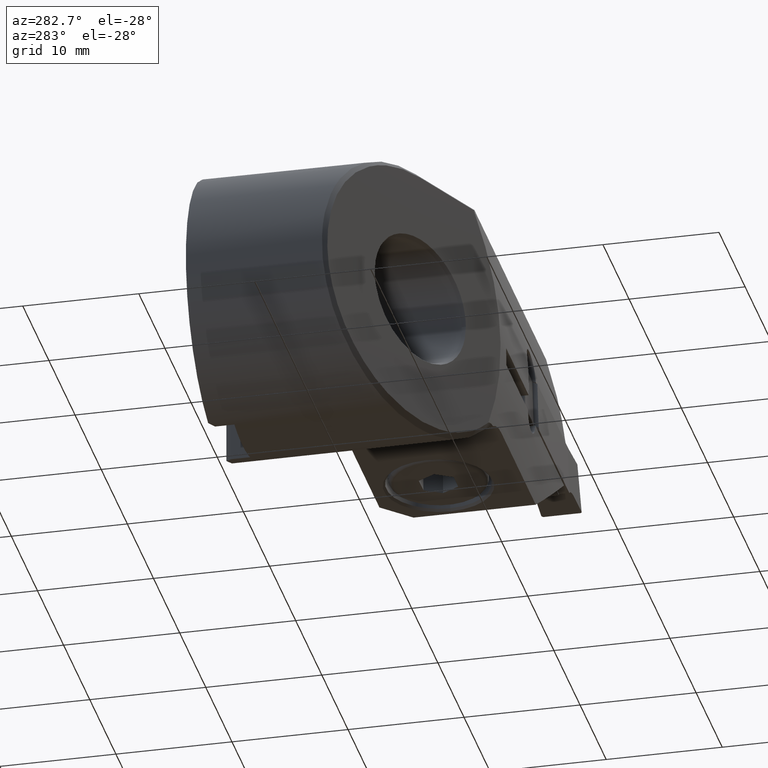
[diagram: clean part render]
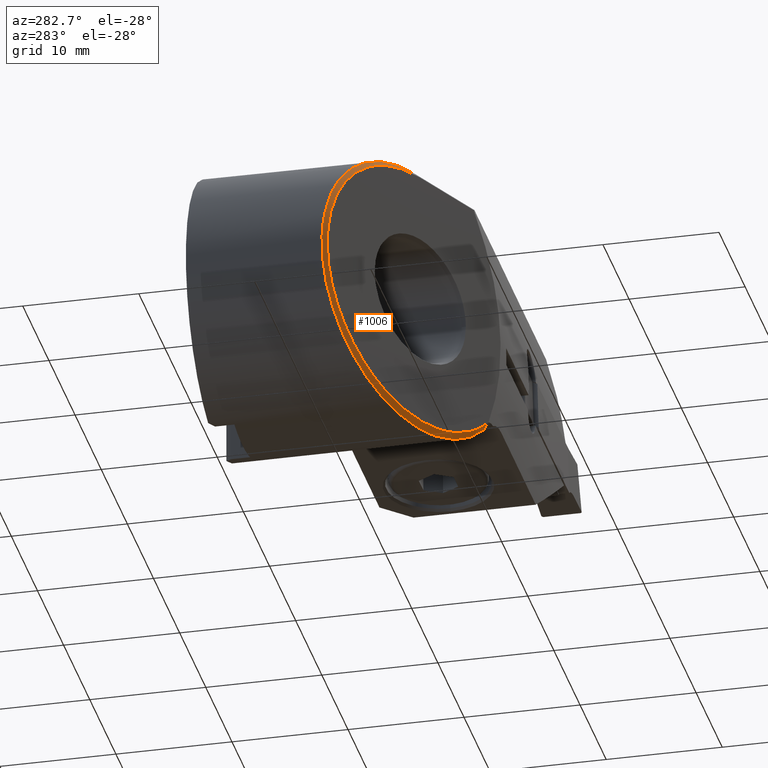
[diagram: same view with one face highlighted and labeled with its STEP entity id]
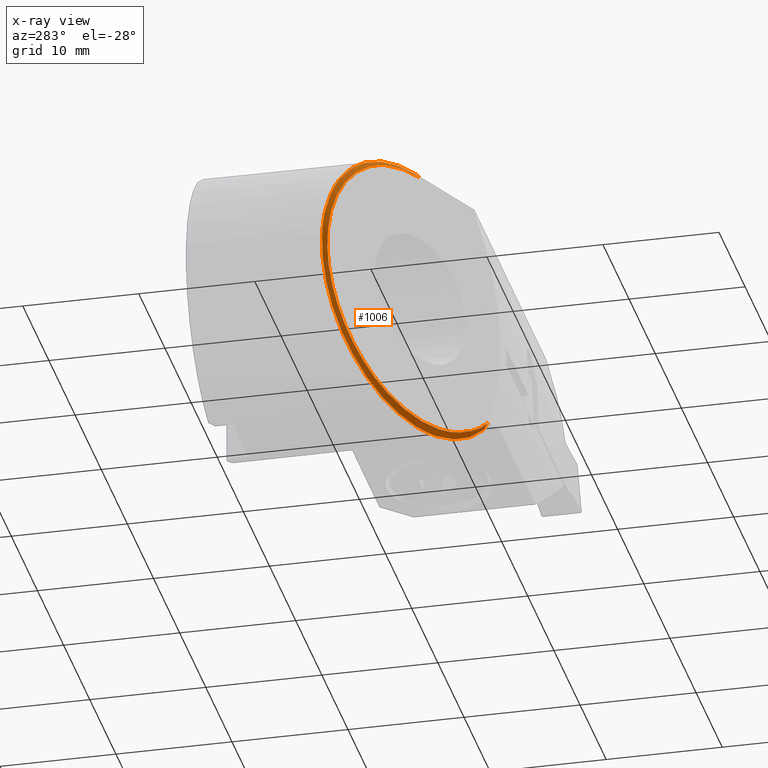
[diagram: x-ray of the same camera — body ghosted, the highlighted face saturated]
A machine part, auxiliary view. The second image highlights one B-rep face of the part: STEP entity #1006.
The next image is the same camera in x-ray: the body ghosted, the highlighted face saturated — about 0% of this face is hidden behind the body in this view.
In plain terms, the highlighted face is a freeform B-spline surface patch.
Its self-contained STEP definition (entity closure, byte-faithful):
#876=EDGE_CURVE('NONE',#1536,#1782,#2349,.F.);
#936=VERTEX_POINT('NONE',#2415);
#972=VERTEX_POINT('NONE',#2454);
#1006=ADVANCED_FACE('NONE',(#2494),#2495,.T.);
#1124=EDGE_CURVE('NONE',#1536,#2140,#2624,.T.);
#1372=VERTEX_POINT('',#2894);
#1526=EDGE_CURVE('NONE',#936,#972,#3067,.T.);
#1536=VERTEX_POINT('NONE',#3077);
#1646=EDGE_CURVE('NONE',#972,#1372,#3193,.T.);
#1782=VERTEX_POINT('NONE',#3346);
#2002=EDGE_CURVE('NONE',#1372,#1782,#3593,.T.);
#2058=EDGE_CURVE('NONE',#2140,#936,#3656,.T.);
#2140=VERTEX_POINT('NONE',#3742);
#2349=B_SPLINE_CURVE_WITH_KNOTS('',1,(#4051,#4052),.UNSPECIFIED.,.F.,.F.,(2,2),(3.44169137633799E-015,0.999999999999994),.UNSPECIFIED.);
#2415=CARTESIAN_POINT('',(8.70585055638072,-21.0214306022468,-8.25882352941177));
#2454=CARTESIAN_POINT('',(0.000127132625236236,-17.1135887251396,-11.9999999993266));
#2494=FACE_OUTER_BOUND('',#4258,.T.);
#2495=B_SPLINE_SURFACE_WITH_KNOTS('',1,3,((#4259,#4260,#4261,#4262,#4263,#4264,#4265,#4266,#4267,#4268,#4269,#4270,#4271,#4272,#4273,#4274,#4275,#4276,#4277,#4278,#4279,#4280,#4281,#4282),(#4283,#4284,#4285,#4286,#4287,#4288,#4289,#4290,#4291,#4292,#4293,#4294,#4295,#4296,#4297,#4298,#4299,#4300,#4301,#4302,#4303,#4304,#4305,#4306),(#4307,#4308,#4309,#4310,#4311,#4312,#4313,#4314,#4315,#4316,#4317,#4318,#4319,#4320,#4321,#4322,#4323,#4324,#4325,#4326,#4327,#4328,#4329,#4330)),.UNSPECIFIED.,.F.,.F.,.F.,(2,1,2),(4,3,2,2,2,2,2,2,2,3,4),(-0.142235075234763,0.0,1.0),(3.86111309779303,3.90064644963641,4.39481334767867,4.88898024572093,5.38314714376319,5.87731404180544,6.3714809398477,6.86564783788996,7.35981473593222,7.85398163397448,7.89351498581786),.UNSPECIFIED.);
#2624=B_SPLINE_CURVE_WITH_KNOTS('',3,(#4599,#4600,#4601,#4602,#4603,#4604,#4605,#4606,#4607,#4608,#4609,#4610,#4611,#4612,#4613,#4614,#4615,#4616,#4617,#4618,#4619,#4620,#4621),.UNSPECIFIED.,.F.,.F.,(4,1,2,2,2,2,2,2,2,2,2,4),(0.0,0.0624999999999999,0.0937499999999999,0.125,0.25,0.375,0.5,0.625,0.75,0.8125,0.875,1.0),.UNSPECIFIED.);
#2894=CARTESIAN_POINT('',(-2.80649743675581E-013,-17.1135317976237,-12.0));
#3067=B_SPLINE_CURVE_WITH_KNOTS('',3,(#5524,#5525,#5526,#5527,#5528,#5529,#5530,#5531,#5532,#5533,#5534,#5535,#5536,#5537,#5538,#5539,#5540,#5541,#5542,#5543,#5544,#5545,#5546,#5547,#5548,#5549),.UNSPECIFIED.,.F.,.F.,(4,2,2,2,2,2,2,2,2,2,2,2,4),(-12.268442268074,-12.1450642113249,-11.9696358276416,-11.8871228370995,-11.7908012352085,-11.5960268058741,-11.284820873291,-10.585884270786,-9.06837693916302,-8.06810803531895,-5.38891703570178,-2.64679597727817,-0.0),.UNSPECIFIED.);
#3077=CARTESIAN_POINT('',(-0.189090218719429,-17.5186953501022,11.5525744251075));
#3193=B_SPLINE_CURVE_WITH_KNOTS('',3,(#5755,#5756,#5757,#5758,#5759,#5760,#5761,#5762,#5763,#5764,#5765,#5766,#5767,#5768,#5769,#5770,#5771,#5772,#5773,#5774,#5775,#5776,#5777,#5778,#5779,#5780,#5781,#5782,#5783,#5784,#5785,#5786,#5787,#5788,#5789,#5790,#5791,#5792,#5793,#5794),.UNSPECIFIED.,.F.,.F.,(4,2,2,2,2,2,2,2,2,2,2,2,2,2,2,2,2,2,2,4),(-51.1107395337743,-46.6343419377027,-42.4507812478867,-38.2631842885573,-32.2791663495651,-30.0434360509297,-24.546884098793,-22.4867814572427,-18.7622350562353,-15.9694199910246,-10.3311747624531,-8.94288867927371,-2.85543433935506,-0.54868736192626,-0.490720992010847,-0.428060672758063,-0.325750287491835,-0.251366457562362,-0.139472428335542,-0.0),.UNSPECIFIED.);
#3346=CARTESIAN_POINT('',(0.0,-17.1131900674578,12.0));
#3593=B_SPLINE_CURVE_WITH_KNOTS('',3,(#6506,#6507,#6508,#6509,#6510,#6511,#6512,#6513,#6514,#6515,#6516,#6517,#6518,#6519,#6520,#6521,#6522,#6523,#6524,#6525,#6526,#6527,#6528,#6529,#6530,#6531,#6532,#6533,#6534,#6535,#6536,#6537,#6538,#6539,#6540,#6541,#6542,#6543,#6544,#6545),.UNSPECIFIED.,.F.,.F.,(4,2,2,2,2,2,2,2,2,2,2,2,2,2,2,2,2,2,2,4),(-51.1107395337743,-46.6343419377027,-42.4507812478867,-38.2631842885573,-32.2791663495651,-30.0434360509297,-24.546884098793,-22.4867814572427,-18.7622350562353,-15.9694199910246,-10.3311747624531,-8.94288867927371,-2.85543433935506,-0.54868736192626,-0.490720992010847,-0.428060672758063,-0.325750287491835,-0.251366457562362,-0.139472428335542,-0.0),.UNSPECIFIED.);
#3656=B_SPLINE_CURVE_WITH_KNOTS('',1,(#6643,#6644),.UNSPECIFIED.,.F.,.F.,(2,2),(-1.0,4.44089209850063E-015),.UNSPECIFIED.);
#3742=CARTESIAN_POINT('',(8.19215865515161,-21.4269358848912,-7.95088945727988));
#4051=CARTESIAN_POINT('',(-3.54993812123894E-014,-17.1131900674578,12.0));
#4052=CARTESIAN_POINT('',(-0.189090218719425,-17.5186953501022,11.5525744251075));
#4258=EDGE_LOOP('',(#7193,#7194,#7195,#7196,#7197,#7198));
#4259=CARTESIAN_POINT('',(9.10685525308988,-21.1101959659783,-7.95620391331127));
#4260=CARTESIAN_POINT('',(8.99754202292643,-21.0613818199395,-8.07167679398377));
#4261=CARTESIAN_POINT('',(8.88822879276299,-21.0125676739006,-8.18714967465628));
#4262=CARTESIAN_POINT('',(8.77891556259954,-20.9637535278618,-8.30262255532879));
#4263=CARTESIAN_POINT('',(7.41250018555646,-20.3535767023762,-9.74603356373513));
#4264=CARTESIAN_POINT('',(5.6821436225498,-19.5808808645833,-10.8397459536301));
#4265=CARTESIAN_POINT('',(1.90573589770293,-17.8945148326488,-12.0810547647239));
#4266=CARTESIAN_POINT('',(-0.135952516691801,-16.9834702918709,-12.2281678174664));
#4267=CARTESIAN_POINT('',(-4.04906550832436,-15.23538066351,-11.5268586390328));
#4268=CARTESIAN_POINT('',(-5.91464046511957,-14.4023026523037,-10.6855079415913));
#4269=CARTESIAN_POINT('',(-9.0286050004859,-13.0117525847239,-8.21461147990394));
#4270=CARTESIAN_POINT('',(-10.271938873543,-12.4565381686471,-6.5890775521054));
#4271=CARTESIAN_POINT('',(-11.8414195845907,-11.7556819180609,-2.93684018000548));
#4272=CARTESIAN_POINT('',(-12.1650179751662,-11.6111781002464,-0.91606738452394));
#4273=CARTESIAN_POINT('',(-11.8144822414607,-11.7677108682422,3.04363379133416));
#4274=CARTESIAN_POINT('',(-11.1409173245869,-12.0684932728147,4.97613196197457));
#4275=CARTESIAN_POINT('',(-8.95423852123089,-13.0449611558505,8.29585217066774));
#4276=CARTESIAN_POINT('',(-7.44467511646866,-13.7190611562211,9.67768374246512));
#4277=CARTESIAN_POINT('',(-3.94506387748865,-15.281822899218,11.5631080220768));
#4278=CARTESIAN_POINT('',(-1.96069673830542,-16.1679479106177,12.0657286710035));
#4279=CARTESIAN_POINT('',(0.0268952614856757,-17.0555129930727,12.0636396103068));
#4280=CARTESIAN_POINT('',(0.185902621468963,-17.1265181996691,12.0634724854511));
#4281=CARTESIAN_POINT('',(0.34490998145225,-17.1975234062656,12.0633053605953));
#4282=CARTESIAN_POINT('',(0.503917341435537,-17.268528612862,12.0631382357396));
#4283=CARTESIAN_POINT('',(9.0320602586767,-21.1678730403634,-7.9142323580493));
#4284=CARTESIAN_POINT('',(8.92332369124471,-21.1190588943245,-8.02909608183679));
#4285=CARTESIAN_POINT('',(8.81458712381272,-21.0702447482857,-8.14395980562428));
#4286=CARTESIAN_POINT('',(8.70585055638073,-21.0214306022468,-8.25882352941177));
#4287=CARTESIAN_POINT('',(7.34664346348084,-20.4112537767612,-9.69462007675538));
#4288=CARTESIAN_POINT('',(5.62541509104344,-19.638557938345,-10.7825627796192));
#4289=CARTESIAN_POINT('',(1.86892914401918,-17.9521919076572,-12.017323283394));
#4290=CARTESIAN_POINT('',(-0.161958687554474,-17.0410770037417,-12.163306232561));
#4291=CARTESIAN_POINT('',(-4.05445875368367,-15.2930577386111,-11.4660507226611));
#4292=CARTESIAN_POINT('',(-5.91019219969781,-14.4599797264735,-10.6291384223008));
#4293=CARTESIAN_POINT('',(-9.00772956158946,-13.0694296593241,-8.1712767413096));
#4294=CARTESIAN_POINT('',(-10.2445044452459,-12.5142152432929,-6.55431803295328));
#4295=CARTESIAN_POINT('',(-11.8057056377869,-11.8133589921852,-2.92134739455724));
#4296=CARTESIAN_POINT('',(-12.1275969415805,-11.6688551745358,-0.91123483436241));
#4297=CARTESIAN_POINT('',(-11.7789103971153,-11.825387942723,3.02757763856139));
#4298=CARTESIAN_POINT('',(-11.1088987541292,-12.1261703470315,4.94988125193202));
#4299=CARTESIAN_POINT('',(-8.9337553897243,-13.1026382304038,8.25208886126978));
#4300=CARTESIAN_POINT('',(-7.43215542077753,-13.7767382310492,9.62663082346276));
#4301=CARTESIAN_POINT('',(-3.95100576764366,-15.3394999731599,11.5021088776747));
#4302=CARTESIAN_POINT('',(-1.97710680756046,-16.2256249850028,12.0020780402242));
#4303=CARTESIAN_POINT('',(-3.4847220452592E-014,-17.1131900674578,12.0));
#4304=CARTESIAN_POINT('',(0.158168544604799,-17.1841952740542,11.9998337567821));
#4305=CARTESIAN_POINT('',(0.316337089209632,-17.2552004806506,11.9996675135641));
#4306=CARTESIAN_POINT('',(0.474505633814466,-17.326205687247,11.9995012703462));
#4307=CARTESIAN_POINT('',(8.50620547714881,-21.5733783230077,-7.6191465278299));
#4308=CARTESIAN_POINT('',(8.40152320314974,-21.5245641769689,-7.72972750431322));
#4309=CARTESIAN_POINT('',(8.29684092915068,-21.4757500309301,-7.84030848079655));
#4310=CARTESIAN_POINT('',(8.19215865515161,-21.4269358848912,-7.95088945727988));
#4311=CARTESIAN_POINT('',(6.88363023016328,-20.8167590594056,-9.3331516633215));
#4312=CARTESIAN_POINT('',(5.22657864783325,-20.0440632166073,-10.3805299201677));
#4313=CARTESIAN_POINT('',(1.61015504330599,-18.3576971946837,-11.5692517987433));
#4314=CARTESIAN_POINT('',(-0.344798052737422,-17.4460875946649,-11.7072894251849));
#4315=CARTESIAN_POINT('',(-4.09237658337802,-15.6985630262899,-11.03853369656));
#4316=CARTESIAN_POINT('',(-5.87891815977185,-14.8654850076051,-10.2328260556257));
#4317=CARTESIAN_POINT('',(-8.86096239560047,-13.4749349434813,-7.86660689441834));
#4318=CARTESIAN_POINT('',(-10.0516235524578,-12.919720527771,-6.30993724927703));
#4319=CARTESIAN_POINT('',(-11.5546146411054,-12.2188642729959,-2.81242359061743));
#4320=CARTESIAN_POINT('',(-11.8645040756051,-12.0743604565074,-0.877259036525249));
#4321=CARTESIAN_POINT('',(-11.5288184680555,-12.2308932260402,2.91469301607104));
#4322=CARTESIAN_POINT('',(-10.8837885244277,-12.5316756284931,4.76532262601488));
#4323=CARTESIAN_POINT('',(-8.78974638580747,-13.508143514231,7.9444058982192));
#4324=CARTESIAN_POINT('',(-7.34413426516269,-14.1822435168093,9.2676974245237));
#4325=CARTESIAN_POINT('',(-3.99278090746204,-15.7450052526886,11.0732474009858));
#4326=CARTESIAN_POINT('',(-2.0924796804468,-16.6311302676472,11.5545749846366));
#4327=CARTESIAN_POINT('',(-0.189090218719427,-17.5186953501022,11.5525744251075));
#4328=CARTESIAN_POINT('',(-0.0368190617812366,-17.5897005566986,11.5524143803452));
#4329=CARTESIAN_POINT('',(0.115452095156953,-17.660705763295,11.5522543355829));
#4330=CARTESIAN_POINT('',(0.267723252095143,-17.7317109698914,11.5520942908206));
#4599=CARTESIAN_POINT('',(-0.189090218719429,-17.5186953501022,11.5525744251075));
#4600=CARTESIAN_POINT('',(-1.1586526806973,-17.0665809490223,11.5534416155385));
#4601=CARTESIAN_POINT('',(-2.57074544812981,-16.4081112775432,11.3813292568176));
#4602=CARTESIAN_POINT('',(-3.91946182726091,-15.7791945012753,10.9490971815457));
#4603=CARTESIAN_POINT('',(-4.8045224381702,-15.3664839604769,10.6031380832421));
#4604=CARTESIAN_POINT('',(-5.241008751759,-15.1629470497706,10.4007188600971));
#4605=CARTESIAN_POINT('',(-7.37825292452578,-14.1663337246623,9.24948662338536));
#4606=CARTESIAN_POINT('',(-8.7683471018784,-13.5181221642061,7.97661913822175));
#4607=CARTESIAN_POINT('',(-10.9051878083568,-12.5216969785179,4.73310938601233));
#4608=CARTESIAN_POINT('',(-11.5252580063479,-12.232553496601,2.95320189547539));
#4609=CARTESIAN_POINT('',(-11.8680645373127,-12.0727001859465,-0.915767915929602));
#4610=CARTESIAN_POINT('',(-11.5697448683731,-12.2118089321513,-2.77683296048714));
#4611=CARTESIAN_POINT('',(-10.0364933251901,-12.9267758686156,-6.34552787940731));
#4612=CARTESIAN_POINT('',(-8.89116324103333,-13.4608520579732,-7.84245029683428));
#4613=CARTESIAN_POINT('',(-5.848717314339,-14.8795678931132,-10.2569826532098));
#4614=CARTESIAN_POINT('',(-4.13042188142378,-15.6808222124544,-11.0315912844491));
#4615=CARTESIAN_POINT('',(-1.26267003637469,-17.0180768594889,-11.5435716990841));
#4616=CARTESIAN_POINT('',(-0.314965215230897,-17.4599988752586,-11.5957333764051));
#4617=CARTESIAN_POINT('',(1.56401950597822,-18.3361838403147,-11.4630598092662));
#4618=CARTESIAN_POINT('',(2.49397926830176,-18.7698311992622,-11.2786583817253));
#4619=CARTESIAN_POINT('',(5.26714200010533,-20.0629782184122,-10.3673558149159));
#4620=CARTESIAN_POINT('',(6.85840593663267,-20.8049967781608,-9.35935534752407));
#4621=CARTESIAN_POINT('',(8.19215865515161,-21.4269358848912,-7.95088945727988));
#5524=CARTESIAN_POINT('',(9.02414568741277,-21.1739762471233,-7.90979105996799));
#5525=CARTESIAN_POINT('',(8.99522420958316,-21.1591409961211,-7.94278708065311));
#5526=CARTESIAN_POINT('',(8.96608498487477,-21.1444738884431,-7.9756664362572));
#5527=CARTESIAN_POINT('',(8.89498573531427,-21.1093595808628,-8.05500719681287));
#5528=CARTESIAN_POINT('',(8.85280626244376,-21.0890859035674,-8.10134317150356));
#5529=CARTESIAN_POINT('',(8.79014442520514,-21.0597795128424,-8.16910231363108));
#5530=CARTESIAN_POINT('',(8.77000334923568,-21.0504806566406,-8.19072131788351));
#5531=CARTESIAN_POINT('',(8.72614219462332,-21.0304914783191,-8.23745312720532));
#5532=CARTESIAN_POINT('',(8.70618485368804,-21.0215813176877,-8.2585279533422));
#5533=CARTESIAN_POINT('',(8.64229185312093,-20.9929973841768,-8.32554080596833));
#5534=CARTESIAN_POINT('',(8.59922663335402,-20.9737166740082,-8.37001360331018));
#5535=CARTESIAN_POINT('',(8.48655232987625,-20.9232389177495,-8.48458590350986));
#5536=CARTESIAN_POINT('',(8.41646623241914,-20.8918089788306,-8.55411114808545));
#5537=CARTESIAN_POINT('',(8.18650227085104,-20.7886050805935,-8.77668591913516));
#5538=CARTESIAN_POINT('',(8.02355886019886,-20.7153615413054,-8.92586300542567));
#5539=CARTESIAN_POINT('',(7.49554878525077,-20.4778823611763,-9.38325655829904));
#5540=CARTESIAN_POINT('',(7.11740203903689,-20.3076354878527,-9.67299060520581));
#5541=CARTESIAN_POINT('',(6.46682791415478,-20.015159701162,-10.113235378837));
#5542=CARTESIAN_POINT('',(6.20238234524853,-19.8963715124051,-10.2774853559511));
#5543=CARTESIAN_POINT('',(5.21038298804387,-19.4511818111578,-10.8416991629286));
#5544=CARTESIAN_POINT('',(4.45198512185151,-19.1118507129152,-11.1737860403404));
#5545=CARTESIAN_POINT('',(2.87076603987393,-18.4018582403343,-11.6817972401203));
#5546=CARTESIAN_POINT('',(2.04879754563891,-18.0319894420704,-11.8532256793245));
#5547=CARTESIAN_POINT('',(0.417120361226203,-17.3000998613203,-12.0197735168981));
#5548=CARTESIAN_POINT('',(-0.39066045791995,-16.9388347928758,-12.0206767994962));
#5549=CARTESIAN_POINT('',(-1.19245521778434,-16.5795218461153,-11.9406051167258));
#5755=CARTESIAN_POINT('',(1.67317886542641,-17.8635887251396,-11.8827805030763));
#5756=CARTESIAN_POINT('',(0.607915217070025,-17.3853778767153,-12.0327770987448));
#5757=CARTESIAN_POINT('',(-0.472663882683707,-16.9025015625153,-12.0388702117902));
#5758=CARTESIAN_POINT('',(-2.53709409329583,-15.9764095765037,-11.7717642143697));
#5759=CARTESIAN_POINT('',(-3.51968832033502,-15.5323815446608,-11.5171405151978));
#5760=CARTESIAN_POINT('',(-5.40726804077724,-14.6834903511753,-10.7608632348712));
#5761=CARTESIAN_POINT('',(-6.30827346877731,-14.2805640388079,-10.2606549354582));
#5762=CARTESIAN_POINT('',(-8.33247774146225,-13.3732808598049,-8.76160309021244));
#5763=CARTESIAN_POINT('',(-9.37198452897184,-12.9031275952333,-7.65002585504532));
#5764=CARTESIAN_POINT('',(-10.4874064357802,-12.4042510613646,-5.86031718225905));
#5765=CARTESIAN_POINT('',(-10.757106244321,-12.2840043341429,-5.34987186785839));
#5766=CARTESIAN_POINT('',(-11.5626708495389,-11.9226683362412,-3.51259323058209));
#5767=CARTESIAN_POINT('',(-11.9023215892045,-11.7672887334161,-2.10636342080083));
#5768=CARTESIAN_POINT('',(-12.0117356565117,-11.7200312976639,-0.11613471855283));
#5769=CARTESIAN_POINT('',(-12.0046766299929,-11.7239472916562,0.427521612545422));
#5770=CARTESIAN_POINT('',(-11.8815272753052,-11.7794633192266,1.94773702908078));
#5771=CARTESIAN_POINT('',(-11.6830733050261,-11.8665423116109,2.90760589723612));
#5772=CARTESIAN_POINT('',(-11.1391184659749,-12.1105422826564,4.52252949042826));
#5773=CARTESIAN_POINT('',(-10.8451071541274,-12.2433629518405,5.18681136631367));
#5774=CARTESIAN_POINT('',(-9.79046987814773,-12.7189044665585,7.08967327615137));
#5775=CARTESIAN_POINT('',(-8.82144983387299,-13.1503415578295,8.29220759467422));
#5776=CARTESIAN_POINT('',(-7.26949305856102,-13.8482408144783,9.55566899606804));
#5777=CARTESIAN_POINT('',(-6.95205037667513,-13.9911733939032,9.78890685485077));
#5778=CARTESIAN_POINT('',(-5.1918339065926,-14.7834931392159,10.9544556959218));
#5779=CARTESIAN_POINT('',(-3.58841057141916,-15.5004139935645,11.5740043372434));
#5780=CARTESIAN_POINT('',(-1.29705423676694,-16.5309265509957,11.9467412586937));
#5781=CARTESIAN_POINT('',(-0.660697915005886,-16.8173113168902,11.9987157233126));
#5782=CARTESIAN_POINT('',(-0.00774691154891705,-17.1097214766804,12.0000081738703));
#5783=CARTESIAN_POINT('',(0.00900119487439318,-17.1172100379169,12.0000095585553));
#5784=CARTESIAN_POINT('',(0.045665708506055,-17.1337164460536,11.9999282239731));
#5785=CARTESIAN_POINT('',(0.0646925049478916,-17.142332099899,11.9998406737465));
#5786=CARTESIAN_POINT('',(0.114735921870466,-17.1651237499734,11.9994916109906));
#5787=CARTESIAN_POINT('',(0.145720190972321,-17.1793680829956,11.9991550804972));
#5788=CARTESIAN_POINT('',(0.199141684765679,-17.2041573376391,11.9983685748938));
#5789=CARTESIAN_POINT('',(0.221602942629688,-17.214650551753,11.9979746454178));
#5790=CARTESIAN_POINT('',(0.277781910499528,-17.2410723244239,11.9968319342571));
#5791=CARTESIAN_POINT('',(0.311463188186968,-17.2570729530747,11.9960044038384));
#5792=CARTESIAN_POINT('',(0.38698061393145,-17.2933077899173,11.9938318806906));
#5793=CARTESIAN_POINT('',(0.428778642029736,-17.313612492168,11.9924096780405));
#5794=CARTESIAN_POINT('',(0.47047197118031,-17.3341157978326,11.9907737917256));
#6506=CARTESIAN_POINT('',(1.67317886542641,-17.8635887251396,-11.8827805030763));
#6507=CARTESIAN_POINT('',(0.607915217070025,-17.3853778767153,-12.0327770987448));
#6508=CARTESIAN_POINT('',(-0.472663882683707,-16.9025015625153,-12.0388702117902));
#6509=CARTESIAN_POINT('',(-2.53709409329583,-15.9764095765037,-11.7717642143697));
#6510=CARTESIAN_POINT('',(-3.51968832033502,-15.5323815446608,-11.5171405151978));
#6511=CARTESIAN_POINT('',(-5.40726804077724,-14.6834903511753,-10.7608632348712));
#6512=CARTESIAN_POINT('',(-6.30827346877731,-14.2805640388079,-10.2606549354582));
#6513=CARTESIAN_POINT('',(-8.33247774146225,-13.3732808598049,-8.76160309021244));
#6514=CARTESIAN_POINT('',(-9.37198452897184,-12.9031275952333,-7.65002585504532));
#6515=CARTESIAN_POINT('',(-10.4874064357802,-12.4042510613646,-5.86031718225905));
#6516=CARTESIAN_POINT('',(-10.757106244321,-12.2840043341429,-5.34987186785839));
#6517=CARTESIAN_POINT('',(-11.5626708495389,-11.9226683362412,-3.51259323058209));
#6518=CARTESIAN_POINT('',(-11.9023215892045,-11.7672887334161,-2.10636342080083));
#6519=CARTESIAN_POINT('',(-12.0117356565117,-11.7200312976639,-0.11613471855283));
#6520=CARTESIAN_POINT('',(-12.0046766299929,-11.7239472916562,0.427521612545422));
#6521=CARTESIAN_POINT('',(-11.8815272753052,-11.7794633192266,1.94773702908078));
#6522=CARTESIAN_POINT('',(-11.6830733050261,-11.8665423116109,2.90760589723612));
#6523=CARTESIAN_POINT('',(-11.1391184659749,-12.1105422826564,4.52252949042826));
#6524=CARTESIAN_POINT('',(-10.8451071541274,-12.2433629518405,5.18681136631367));
#6525=CARTESIAN_POINT('',(-9.79046987814773,-12.7189044665585,7.08967327615137));
#6526=CARTESIAN_POINT('',(-8.82144983387299,-13.1503415578295,8.29220759467422));
#6527=CARTESIAN_POINT('',(-7.26949305856102,-13.8482408144783,9.55566899606804));
#6528=CARTESIAN_POINT('',(-6.95205037667513,-13.9911733939032,9.78890685485077));
#6529=CARTESIAN_POINT('',(-5.1918339065926,-14.7834931392159,10.9544556959218));
#6530=CARTESIAN_POINT('',(-3.58841057141916,-15.5004139935645,11.5740043372434));
#6531=CARTESIAN_POINT('',(-1.29705423676694,-16.5309265509957,11.9467412586937));
#6532=CARTESIAN_POINT('',(-0.660697915005886,-16.8173113168902,11.9987157233126));
#6533=CARTESIAN_POINT('',(-0.00774691154891705,-17.1097214766804,12.0000081738703));
#6534=CARTESIAN_POINT('',(0.00900119487439318,-17.1172100379169,12.0000095585553));
#6535=CARTESIAN_POINT('',(0.045665708506055,-17.1337164460536,11.9999282239731));
#6536=CARTESIAN_POINT('',(0.0646925049478916,-17.142332099899,11.9998406737465));
#6537=CARTESIAN_POINT('',(0.114735921870466,-17.1651237499734,11.9994916109906));
#6538=CARTESIAN_POINT('',(0.145720190972321,-17.1793680829956,11.9991550804972));
#6539=CARTESIAN_POINT('',(0.199141684765679,-17.2041573376391,11.9983685748938));
#6540=CARTESIAN_POINT('',(0.221602942629688,-17.214650551753,11.9979746454178));
#6541=CARTESIAN_POINT('',(0.277781910499528,-17.2410723244239,11.9968319342571));
#6542=CARTESIAN_POINT('',(0.311463188186968,-17.2570729530747,11.9960044038384));
#6543=CARTESIAN_POINT('',(0.38698061393145,-17.2933077899173,11.9938318806906));
#6544=CARTESIAN_POINT('',(0.428778642029736,-17.313612492168,11.9924096780405));
#6545=CARTESIAN_POINT('',(0.47047197118031,-17.3341157978326,11.9907737917256));
#6643=CARTESIAN_POINT('',(8.19215865515161,-21.4269358848912,-7.95088945727988));
#6644=CARTESIAN_POINT('',(8.70585055638073,-21.0214306022468,-8.25882352941177));
#7193=ORIENTED_EDGE('',*,*,#876,.T.);
#7194=ORIENTED_EDGE('',*,*,#2002,.F.);
#7195=ORIENTED_EDGE('',*,*,#1646,.F.);
#7196=ORIENTED_EDGE('',*,*,#1526,.F.);
#7197=ORIENTED_EDGE('',*,*,#2058,.F.);
#7198=ORIENTED_EDGE('',*,*,#1124,.F.);